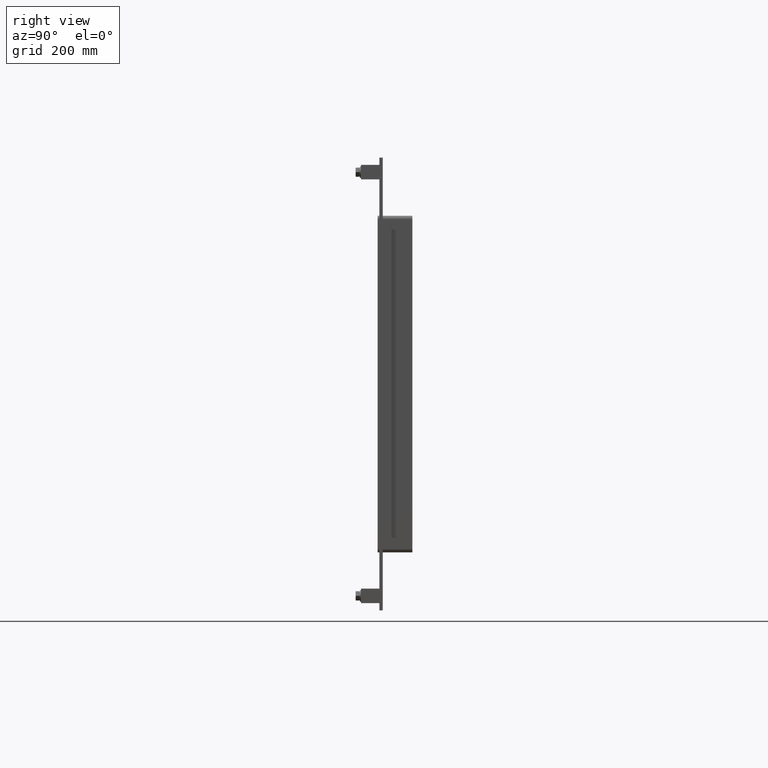
[diagram: clean part render]
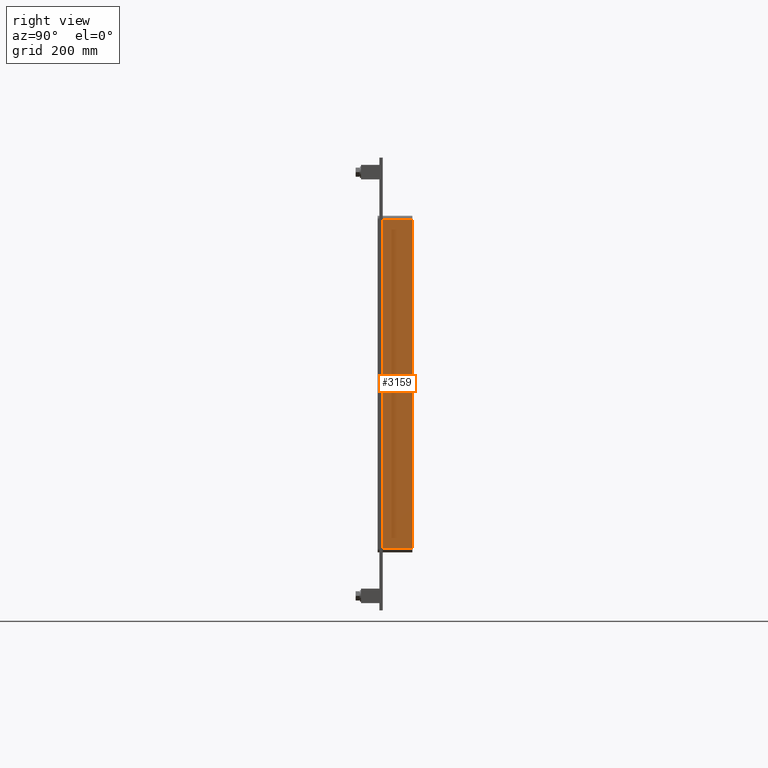
[diagram: same view with one face highlighted and labeled with its STEP entity id]
A machine part, right view. The second image highlights one B-rep face of the part: STEP entity #3159.
In plain terms, the highlighted planar face has unit normal (1, 0, 0).
Its self-contained STEP definition (entity closure, byte-faithful):
#1886=CARTESIAN_POINT('',(392.50000000000006,57.0,284.0));
#1887=VERTEX_POINT('',#1886);
#1895=CARTESIAN_POINT('',(392.50000000000006,57.0,-284.0));
#1896=VERTEX_POINT('',#1895);
#1897=CARTESIAN_POINT('',(392.50000000000006,57.0,283.99999999999994));
#1898=DIRECTION('',(0.0,0.0,-1.0));
#1899=VECTOR('',#1898,568.0);
#1900=LINE('',#1897,#1899);
#1901=EDGE_CURVE('',#1887,#1896,#1900,.T.);
#2597=CARTESIAN_POINT('',(392.50000000000006,6.000000000000001,-284.0));
#2598=VERTEX_POINT('',#2597);
#2606=CARTESIAN_POINT('',(392.50000000000006,6.000000000000001,284.0));
#2607=VERTEX_POINT('',#2606);
#2608=CARTESIAN_POINT('',(392.50000000000006,6.000000000000001,284.0));
#2609=DIRECTION('',(0.0,0.0,-1.0));
#2610=VECTOR('',#2609,568.0);
#2611=LINE('',#2608,#2610);
#2612=EDGE_CURVE('',#2607,#2598,#2611,.T.);
#2923=CARTESIAN_POINT('',(392.50000000000006,57.0,-284.0));
#2924=DIRECTION('',(0.0,-1.0,0.0));
#2925=VECTOR('',#2924,51.0);
#2926=LINE('',#2923,#2925);
#2927=EDGE_CURVE('',#1896,#2598,#2926,.T.);
#3137=CARTESIAN_POINT('',(392.50000000000006,6.000000000000001,284.0));
#3138=DIRECTION('',(0.0,1.0,0.0));
#3139=VECTOR('',#3138,51.0);
#3140=LINE('',#3137,#3139);
#3141=EDGE_CURVE('',#2607,#1887,#3140,.T.);
#3148=CARTESIAN_POINT('',(392.50000000000006,0.0,289.99999999999994));
#3149=DIRECTION('',(1.0,0.0,0.0));
#3150=DIRECTION('',(0.0,0.0,-1.0));
#3151=AXIS2_PLACEMENT_3D('',#3148,#3149,#3150);
#3152=PLANE('',#3151);
#3153=ORIENTED_EDGE('',*,*,#2612,.T.);
#3154=ORIENTED_EDGE('',*,*,#2927,.F.);
#3155=ORIENTED_EDGE('',*,*,#1901,.F.);
#3156=ORIENTED_EDGE('',*,*,#3141,.F.);
#3157=EDGE_LOOP('',(#3153,#3154,#3155,#3156));
#3158=FACE_OUTER_BOUND('',#3157,.T.);
#3159=ADVANCED_FACE('',(#3158),#3152,.T.);